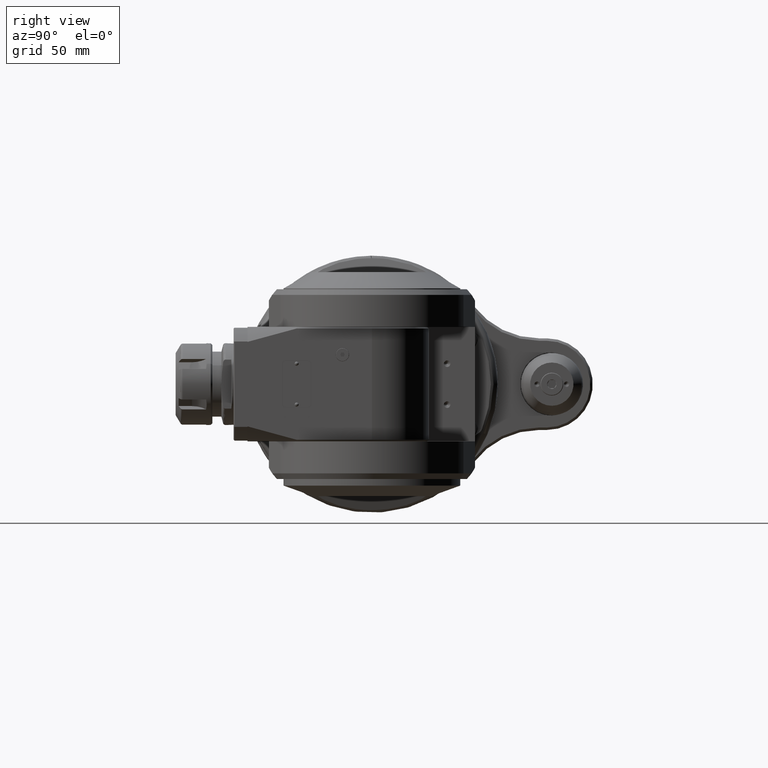
[diagram: clean part render]
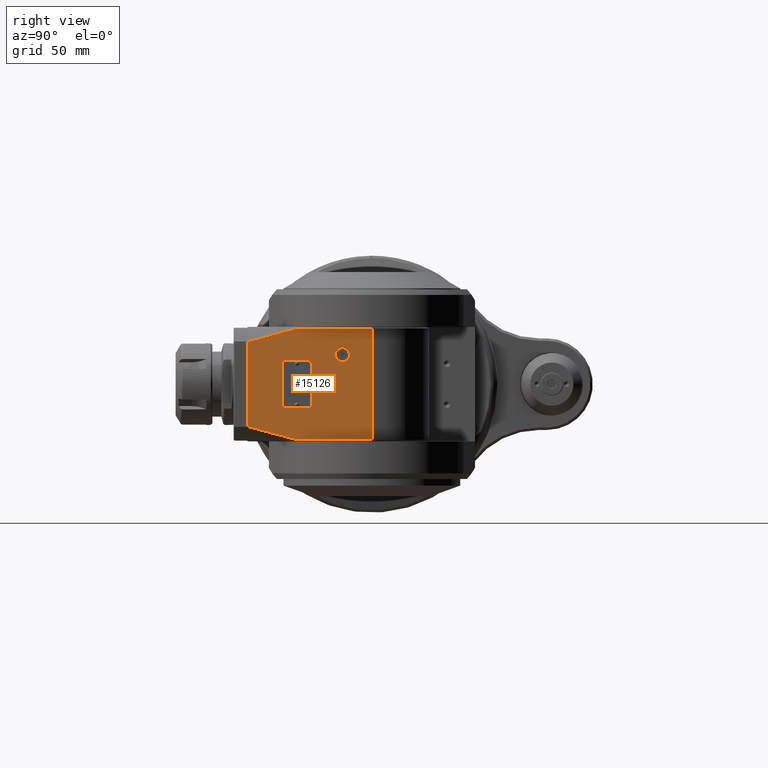
[diagram: same view with one face highlighted and labeled with its STEP entity id]
A machine part, right view. The second image highlights one B-rep face of the part: STEP entity #15126.
In plain terms, the highlighted planar face has unit normal (1, -0, -0).
Its self-contained STEP definition (entity closure, byte-faithful):
#183=(
BOUNDED_CURVE()
B_SPLINE_CURVE(2,(#39976,#39977,#39978),.UNSPECIFIED.,.F.,.F.)
B_SPLINE_CURVE_WITH_KNOTS((3,3),(4.28565426982618,7.90339694762155),
 .UNSPECIFIED.)
CURVE()
GEOMETRIC_REPRESENTATION_ITEM()
RATIONAL_B_SPLINE_CURVE((1.00971867454386,1.00914126971149,1.0006635783122))
REPRESENTATION_ITEM('')
);
#184=(
BOUNDED_CURVE()
B_SPLINE_CURVE(2,(#39986,#39987,#39988),.UNSPECIFIED.,.F.,.F.)
B_SPLINE_CURVE_WITH_KNOTS((3,3),(-7.90339694762155,-4.28565426982789),
 .UNSPECIFIED.)
CURVE()
GEOMETRIC_REPRESENTATION_ITEM()
RATIONAL_B_SPLINE_CURVE((1.0006635783122,1.00914126971146,1.00971867454384))
REPRESENTATION_ITEM('')
);
#577=FACE_BOUND('',#2850,.T.);
#578=FACE_BOUND('',#2851,.T.);
#1107=PLANE('',#16701);
#1887=FACE_OUTER_BOUND('',#2849,.T.);
#2849=EDGE_LOOP('',(#12983,#12984,#12985,#12986,#12987,#12988));
#2850=EDGE_LOOP('',(#12989));
#2851=EDGE_LOOP('',(#12990,#12991,#12992,#12993,#12994,#12995,#12996,#12997));
#3893=LINE('',#39972,#4926);
#3894=LINE('',#39982,#4927);
#3895=LINE('',#39984,#4928);
#3896=LINE('',#39989,#4929);
#3897=LINE('',#39994,#4930);
#3898=LINE('',#39998,#4931);
#3899=LINE('',#40002,#4932);
#3900=LINE('',#40006,#4933);
#4926=VECTOR('',#20343,45.9677723117);
#4927=VECTOR('',#20352,67.99999996999);
#4928=VECTOR('',#20353,45.9677723117);
#4929=VECTOR('',#20354,51.66236541237);
#4930=VECTOR('',#20357,14.);
#4931=VECTOR('',#20360,25.);
#4932=VECTOR('',#20363,14.);
#4933=VECTOR('',#20366,25.);
#5842=CIRCLE('',#16702,4.25);
#5843=CIRCLE('',#16703,2.);
#5844=CIRCLE('',#16704,2.);
#5845=CIRCLE('',#16705,2.);
#5846=CIRCLE('',#16706,2.);
#7068=VERTEX_POINT('',#39969);
#7069=VERTEX_POINT('',#39971);
#7070=VERTEX_POINT('',#39975);
#7071=VERTEX_POINT('',#39981);
#7072=VERTEX_POINT('',#39983);
#7073=VERTEX_POINT('',#39985);
#7074=VERTEX_POINT('',#39990);
#7075=VERTEX_POINT('',#39992);
#7076=VERTEX_POINT('',#39993);
#7077=VERTEX_POINT('',#39995);
#7078=VERTEX_POINT('',#39997);
#7079=VERTEX_POINT('',#39999);
#7080=VERTEX_POINT('',#40001);
#7081=VERTEX_POINT('',#40003);
#7082=VERTEX_POINT('',#40005);
#9110=EDGE_CURVE('',#7069,#7068,#3893,.T.);
#9112=EDGE_CURVE('',#7069,#7070,#183,.T.);
#9114=EDGE_CURVE('',#7071,#7068,#3894,.T.);
#9115=EDGE_CURVE('',#7072,#7071,#3895,.T.);
#9116=EDGE_CURVE('',#7073,#7072,#184,.T.);
#9117=EDGE_CURVE('',#7070,#7073,#3896,.T.);
#9118=EDGE_CURVE('',#7074,#7074,#5842,.T.);
#9119=EDGE_CURVE('',#7075,#7076,#3897,.T.);
#9120=EDGE_CURVE('',#7075,#7077,#5843,.T.);
#9121=EDGE_CURVE('',#7078,#7077,#3898,.T.);
#9122=EDGE_CURVE('',#7078,#7079,#5844,.T.);
#9123=EDGE_CURVE('',#7080,#7079,#3899,.T.);
#9124=EDGE_CURVE('',#7080,#7081,#5845,.T.);
#9125=EDGE_CURVE('',#7082,#7081,#3900,.T.);
#9126=EDGE_CURVE('',#7082,#7076,#5846,.T.);
#12983=ORIENTED_EDGE('',*,*,#9114,.F.);
#12984=ORIENTED_EDGE('',*,*,#9115,.F.);
#12985=ORIENTED_EDGE('',*,*,#9116,.F.);
#12986=ORIENTED_EDGE('',*,*,#9117,.F.);
#12987=ORIENTED_EDGE('',*,*,#9112,.F.);
#12988=ORIENTED_EDGE('',*,*,#9110,.T.);
#12989=ORIENTED_EDGE('',*,*,#9118,.T.);
#12990=ORIENTED_EDGE('',*,*,#9119,.F.);
#12991=ORIENTED_EDGE('',*,*,#9120,.T.);
#12992=ORIENTED_EDGE('',*,*,#9121,.F.);
#12993=ORIENTED_EDGE('',*,*,#9122,.T.);
#12994=ORIENTED_EDGE('',*,*,#9123,.F.);
#12995=ORIENTED_EDGE('',*,*,#9124,.T.);
#12996=ORIENTED_EDGE('',*,*,#9125,.F.);
#12997=ORIENTED_EDGE('',*,*,#9126,.T.);
#15126=ADVANCED_FACE('',(#1887,#577,#578),#1107,.T.);
#16701=AXIS2_PLACEMENT_3D('',#39980,#20350,#20351);
#16702=AXIS2_PLACEMENT_3D('',#39991,#20355,#20356);
#16703=AXIS2_PLACEMENT_3D('',#39996,#20358,#20359);
#16704=AXIS2_PLACEMENT_3D('',#40000,#20361,#20362);
#16705=AXIS2_PLACEMENT_3D('',#40004,#20364,#20365);
#16706=AXIS2_PLACEMENT_3D('',#40007,#20367,#20368);
#20343=DIRECTION('',(-1.37943672079296E-10,-7.249213071231E-9,1.));
#20350=DIRECTION('center_axis',(1.,0.,1.11022302462516E-16));
#20351=DIRECTION('ref_axis',(1.11022302462516E-16,0.,-1.));
#20352=DIRECTION('',(3.752344841731E-11,1.,7.60276298637943E-27));
#20353=DIRECTION('',(-1.93451813569496E-10,7.193704581949E-9,1.));
#20354=DIRECTION('',(0.,-1.,0.));
#20355=DIRECTION('center_axis',(-1.,0.,-1.11022302462516E-16));
#20356=DIRECTION('ref_axis',(0.,-1.,0.));
#20357=DIRECTION('',(-1.58603289232165E-16,0.,1.));
#20358=DIRECTION('center_axis',(-1.,0.,-1.11022302462516E-16));
#20359=DIRECTION('ref_axis',(0.,1.,0.));
#20360=DIRECTION('',(0.,1.,0.));
#20361=DIRECTION('center_axis',(-1.,0.,-1.11022302462516E-16));
#20362=DIRECTION('ref_axis',(1.11022302462516E-16,0.,-1.));
#20363=DIRECTION('',(1.58603289232165E-16,0.,-1.));
#20364=DIRECTION('center_axis',(-1.,0.,-1.11022302462516E-16));
#20365=DIRECTION('ref_axis',(0.,-1.,0.));
#20366=DIRECTION('',(0.,-1.,0.));
#20367=DIRECTION('center_axis',(-1.,0.,-1.11022302462516E-16));
#20368=DIRECTION('ref_axis',(-1.11022302462516E-16,0.,1.));
#39969=CARTESIAN_POINT('',(94.9999999953189,33.9999999351853,1.16688692909199E-12));
#39971=CARTESIAN_POINT('',(94.9999999722319,34.0000004253602,-45.9677724286392));
#39972=CARTESIAN_POINT('',(94.9999999900571,34.00000031695,-45.9677723116988));
#39975=CARTESIAN_POINT('',(94.9999999999971,25.83118270618,-75.9999999999989));
#39976=CARTESIAN_POINT('Ctrl Pts',(94.9999999999971,34.0000005874879,-45.9677724696668));
#39977=CARTESIAN_POINT('Ctrl Pts',(94.9999999999971,29.6812469955635,-63.0340529184923));
#39978=CARTESIAN_POINT('Ctrl Pts',(94.9999999999971,25.8311827061845,-76.0000000000002));
#39980=CARTESIAN_POINT('Origin',(94.9999999999971,35.,35.0000000000012));
#39981=CARTESIAN_POINT('',(94.9999999936784,-33.9999999365037,-5.13933400704154E-13));
#39982=CARTESIAN_POINT('',(94.9999999811671,-33.9999999863,1.17239551400417E-12));
#39983=CARTESIAN_POINT('',(94.9999999722276,-34.0000004253298,-45.9677724286487));
#39984=CARTESIAN_POINT('',(94.9999999900571,-34.0000003169,-45.9677723116988));
#39985=CARTESIAN_POINT('',(94.9999999999971,-25.83118270618,-75.9999999999989));
#39986=CARTESIAN_POINT('Ctrl Pts',(94.9999999999971,-25.8311827061845,-76.0000000000003));
#39987=CARTESIAN_POINT('Ctrl Pts',(94.9999999999971,-29.6812469955616,-63.0340529184988));
#39988=CARTESIAN_POINT('Ctrl Pts',(94.9999999999971,-34.0000005874838,-45.967772469683));
#39989=CARTESIAN_POINT('',(94.9999999999971,25.83118270618,-75.9999999999989));
#39990=CARTESIAN_POINT('',(94.9999999999971,-13.75,-17.9999999999989));
#39991=CARTESIAN_POINT('Origin',(94.9999999999971,-18.,-17.9999999999989));
#39992=CARTESIAN_POINT('',(94.9999999999971,14.5,-52.9999999999988));
#39993=CARTESIAN_POINT('',(94.9999999999971,14.5,-38.9999999999989));
#39994=CARTESIAN_POINT('',(94.9999999999971,14.5,-52.9999999999988));
#39995=CARTESIAN_POINT('',(94.9999999999971,12.5,-54.9999999999988));
#39996=CARTESIAN_POINT('Origin',(94.9999999999971,12.5,-52.9999999999988));
#39997=CARTESIAN_POINT('',(94.9999999999971,-12.5,-54.9999999999988));
#39998=CARTESIAN_POINT('',(94.9999999999971,-12.5,-54.9999999999988));
#39999=CARTESIAN_POINT('',(94.9999999999971,-14.5,-52.9999999999988));
#40000=CARTESIAN_POINT('Origin',(94.9999999999971,-12.5,-52.9999999999988));
#40001=CARTESIAN_POINT('',(94.9999999999971,-14.5,-38.9999999999989));
#40002=CARTESIAN_POINT('',(94.9999999999971,-14.5,-38.9999999999989));
#40003=CARTESIAN_POINT('',(94.9999999999971,-12.5,-36.9999999999989));
#40004=CARTESIAN_POINT('Origin',(94.9999999999971,-12.5,-38.9999999999989));
#40005=CARTESIAN_POINT('',(94.9999999999971,12.5,-36.9999999999989));
#40006=CARTESIAN_POINT('',(94.9999999999971,12.5,-36.9999999999989));
#40007=CARTESIAN_POINT('Origin',(94.9999999999971,12.5,-38.9999999999989));